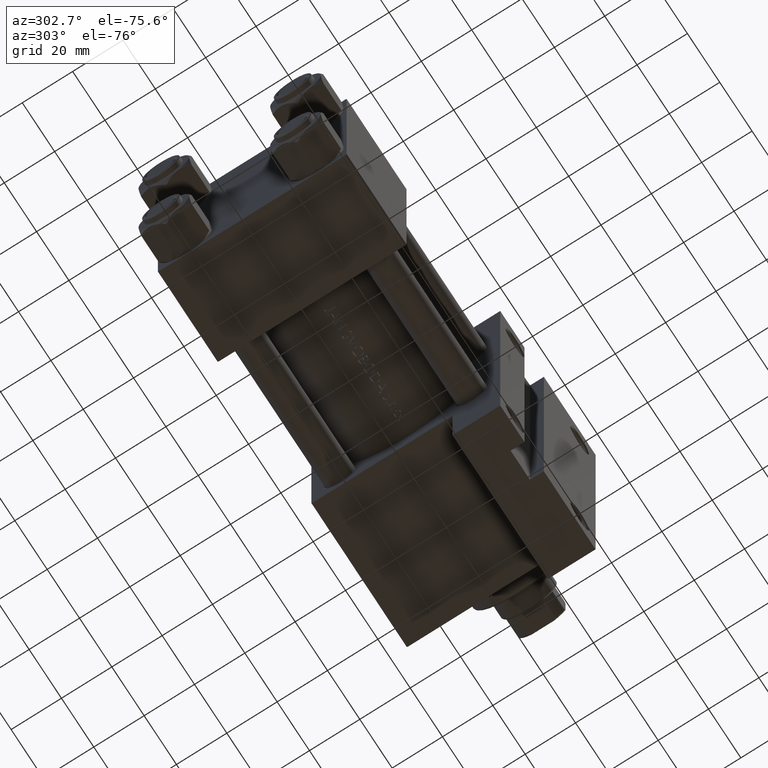
[diagram: clean part render]
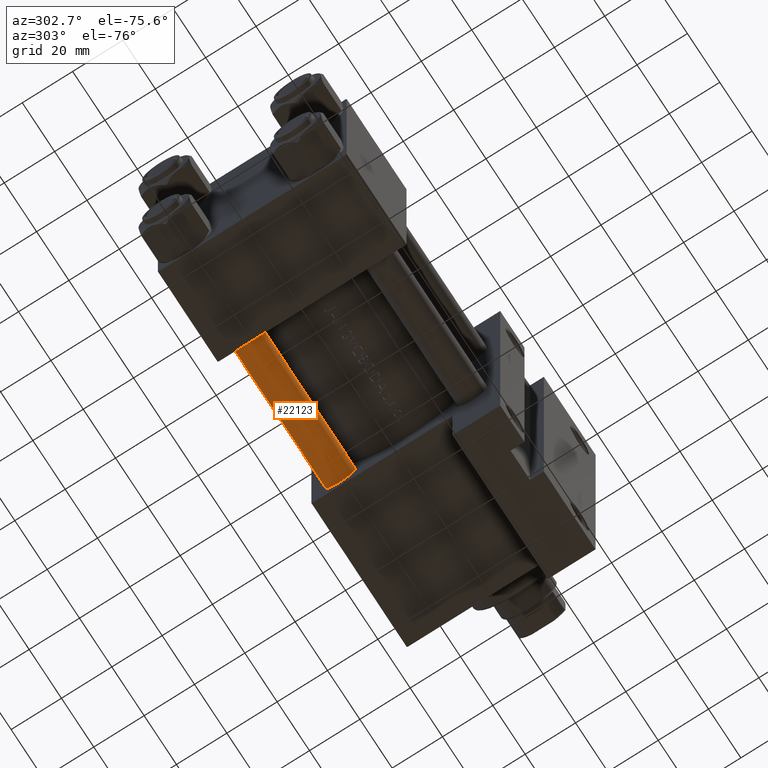
[diagram: same view with one face highlighted and labeled with its STEP entity id]
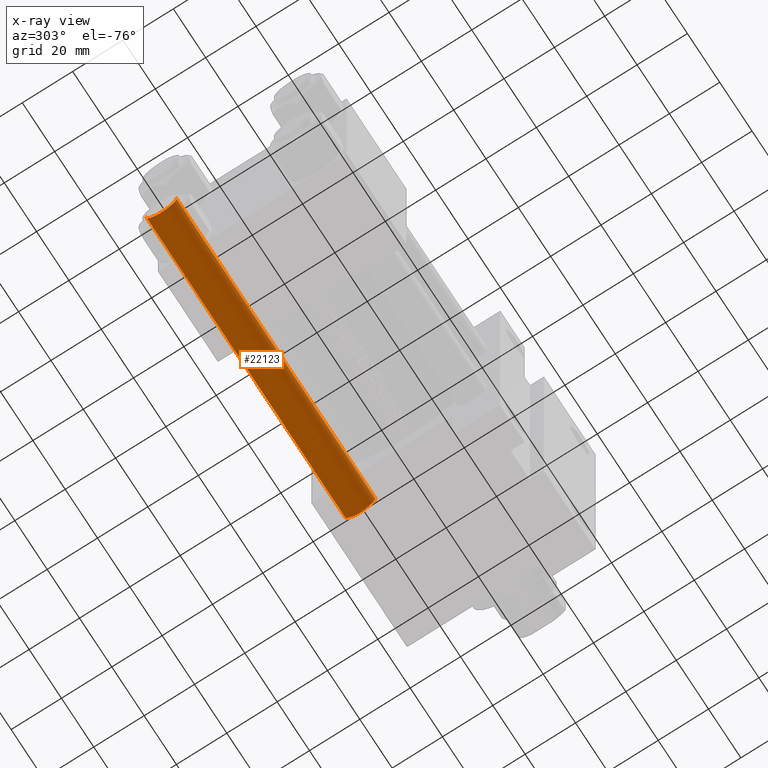
[diagram: x-ray of the same camera — body ghosted, the highlighted face saturated]
A machine part, auxiliary view. The second image highlights one B-rep face of the part: STEP entity #22123.
The next image is the same camera in x-ray: the body ghosted, the highlighted face saturated — about 0% of this face is hidden behind the body in this view.
In plain terms, the highlighted cylindrical surface (edge-blend (fillet) strip) has radius 6 mm, axis along (-1, -0, 0).
Its self-contained STEP definition (entity closure, byte-faithful):
#343 = ORIENTED_EDGE ( 'NONE', *, *, #23239, .T. ) ;
#821 = ORIENTED_EDGE ( 'NONE', *, *, #9735, .F. ) ;
#3988 = CARTESIAN_POINT ( 'NONE',  ( -6.000000000000000888, 0.000000000000000000, 0.4999999999999865663 ) ) ;
#4936 = AXIS2_PLACEMENT_3D ( 'NONE', #27368, #44732, #22807 ) ;
#6978 = EDGE_LOOP ( 'NONE', ( #821, #343, #20338, #44508 ) ) ;
#8439 = CARTESIAN_POINT ( 'NONE',  ( -6.000000000000000888, 0.000000000000000000, 124.0000000000000000 ) ) ;
#9364 = CARTESIAN_POINT ( 'NONE',  ( 6.000000000000000888, 7.347880794884120722E-16, 123.5000000000000426 ) ) ;
#9476 = CYLINDRICAL_SURFACE ( 'NONE', #12366, 6.000000000000000888 ) ;
#9735 = EDGE_CURVE ( 'NONE', #32572, #13177, #16349, .T. ) ;
#11105 = DIRECTION ( 'NONE',  ( 1.000000000000000000, 0.000000000000000000, 0.000000000000000000 ) ) ;
#12052 = DIRECTION ( 'NONE',  ( -0.000000000000000000, -0.000000000000000000, -1.000000000000000000 ) ) ;
#12366 = AXIS2_PLACEMENT_3D ( 'NONE', #15778, #24178, #45177 ) ;
#12739 = DIRECTION ( 'NONE',  ( -0.000000000000000000, -0.000000000000000000, -1.000000000000000000 ) ) ;
#13177 = VERTEX_POINT ( 'NONE', #38172 ) ;
#15666 = LINE ( 'NONE', #8439, #24148 ) ;
#15778 = CARTESIAN_POINT ( 'NONE',  ( 0.000000000000000000, 0.000000000000000000, 124.0000000000000000 ) ) ;
#16349 = LINE ( 'NONE', #16589, #43408 ) ;
#16589 = CARTESIAN_POINT ( 'NONE',  ( 6.000000000000000888, 7.347880794884120722E-16, 124.0000000000000000 ) ) ;
#17756 = VERTEX_POINT ( 'NONE', #3988 ) ;
#20338 = ORIENTED_EDGE ( 'NONE', *, *, #33209, .T. ) ;
#22123 = ADVANCED_FACE ( 'NONE', ( #30968 ), #9476, .T. ) ;
#22807 = DIRECTION ( 'NONE',  ( 1.000000000000000000, 0.000000000000000000, 0.000000000000000000 ) ) ;
#23239 = EDGE_CURVE ( 'NONE', #32572, #30175, #31674, .T. ) ;
#23451 = CARTESIAN_POINT ( 'NONE',  ( -6.000000000000000888, 0.000000000000000000, 123.5000000000000426 ) ) ;
#24148 = VECTOR ( 'NONE', #12052, 1000.000000000000000 ) ;
#24178 = DIRECTION ( 'NONE',  ( -0.000000000000000000, -0.000000000000000000, -1.000000000000000000 ) ) ;
#27368 = CARTESIAN_POINT ( 'NONE',  ( 0.000000000000000000, 0.000000000000000000, 0.4999999999999865663 ) ) ;
#30175 = VERTEX_POINT ( 'NONE', #23451 ) ;
#30968 = FACE_OUTER_BOUND ( 'NONE', #6978, .T. ) ;
#31674 = CIRCLE ( 'NONE', #41652, 6.000000000000000888 ) ;
#32572 = VERTEX_POINT ( 'NONE', #9364 ) ;
#33043 = DIRECTION ( 'NONE',  ( 0.000000000000000000, 0.000000000000000000, -1.000000000000000000 ) ) ;
#33209 = EDGE_CURVE ( 'NONE', #30175, #17756, #15666, .T. ) ;
#34207 = CIRCLE ( 'NONE', #4936, 6.000000000000000888 ) ;
#37367 = CARTESIAN_POINT ( 'NONE',  ( 0.000000000000000000, 0.000000000000000000, 123.5000000000000426 ) ) ;
#38172 = CARTESIAN_POINT ( 'NONE',  ( 6.000000000000000888, 7.347880794884120722E-16, 0.4999999999999865663 ) ) ;
#41652 = AXIS2_PLACEMENT_3D ( 'NONE', #37367, #33043, #11105 ) ;
#43408 = VECTOR ( 'NONE', #12739, 1000.000000000000000 ) ;
#44508 = ORIENTED_EDGE ( 'NONE', *, *, #46524, .T. ) ;
#44732 = DIRECTION ( 'NONE',  ( -0.000000000000000000, -0.000000000000000000, 1.000000000000000000 ) ) ;
#45177 = DIRECTION ( 'NONE',  ( -1.000000000000000000, 0.000000000000000000, 0.000000000000000000 ) ) ;
#46524 = EDGE_CURVE ( 'NONE', #17756, #13177, #34207, .T. ) ;